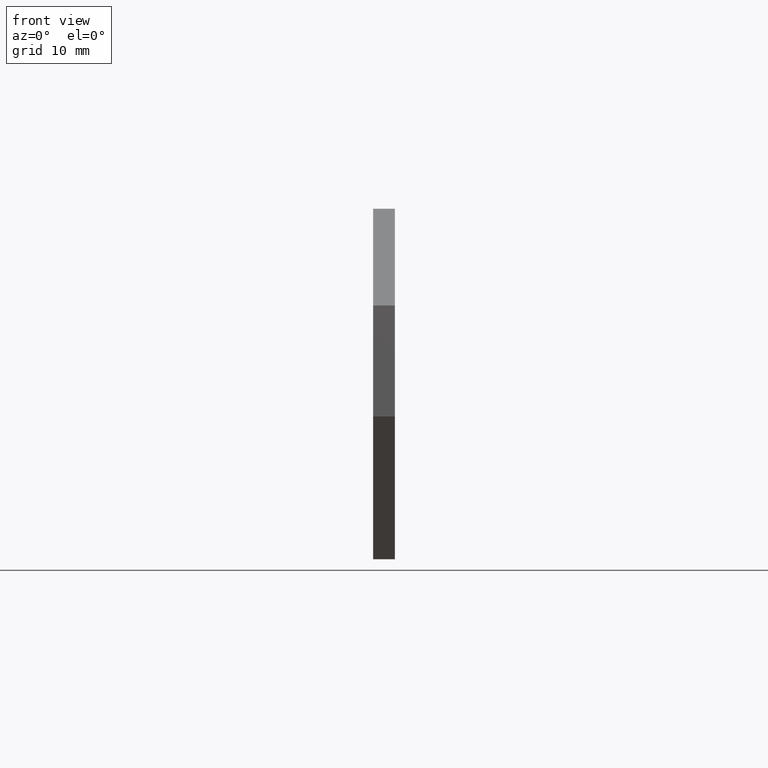
[diagram: clean part render]
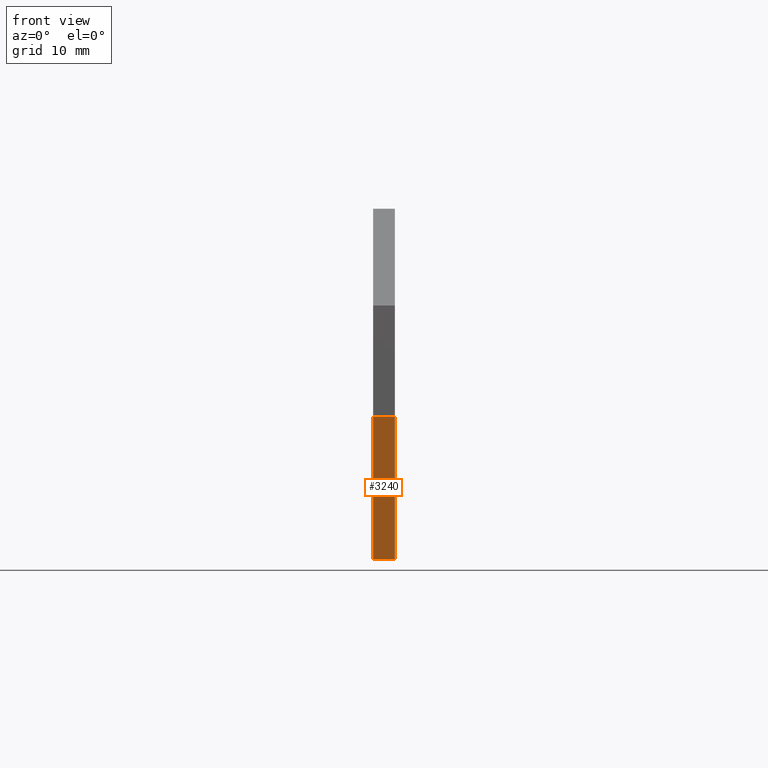
[diagram: same view with one face highlighted and labeled with its STEP entity id]
A machine part, front view. The second image highlights one B-rep face of the part: STEP entity #3240.
In plain terms, the highlighted planar face has unit normal (0, -0.8667, -0.4988).
Its self-contained STEP definition (entity closure, byte-faithful):
#520=CARTESIAN_POINT('',(42.2076425292826,-38.2000000000016,
45.3200000000002));
#530=VERTEX_POINT('',#520);
#560=CARTESIAN_POINT('',(20.2244857784315,0.,45.32));
#570=DIRECTION('',(-0.498780693240377,0.866728227330026,
-6.16173778666962E-15));
#580=VECTOR('',#570,1.);
#590=LINE('',#560,#580);
#600=CARTESIAN_POINT('',(33.9321672216736,-23.8197560553535,
45.3200000000001));
#610=VERTEX_POINT('',#600);
#620=EDGE_CURVE('',#530,#610,#590,.T.);
#910=CARTESIAN_POINT('',(33.9321672216736,-23.8197560553535,
43.1200000000001));
#920=VERTEX_POINT('',#910);
#950=CARTESIAN_POINT('',(20.2244857784315,0.,43.12));
#960=DIRECTION('',(-0.498780693240377,0.866728227330026,
-6.16173778666962E-15));
#970=VECTOR('',#960,1.);
#980=LINE('',#950,#970);
#990=CARTESIAN_POINT('',(42.2076425292826,-38.2000000000017,
43.1200000000002));
#1000=VERTEX_POINT('',#990);
#1010=EDGE_CURVE('',#1000,#920,#980,.T.);
#1710=CARTESIAN_POINT('',(42.2076425292825,-38.200000000002,0.));
#1720=DIRECTION('',(-1.9841476476192E-28,7.105427357601E-15,1.));
#1730=VECTOR('',#1720,1.);
#1740=LINE('',#1710,#1730);
#1750=EDGE_CURVE('',#1000,#530,#1740,.T.);
#2710=CARTESIAN_POINT('',(33.9321672216736,-23.8197560553538,0.));
#2720=DIRECTION('',(-1.99278912365413E-28,7.105427357601E-15,1.));
#2730=VECTOR('',#2720,1.);
#2740=LINE('',#2710,#2730);
#2750=EDGE_CURVE('',#920,#610,#2740,.T.);
#3130=CARTESIAN_POINT('',(34.1987107670136,-24.2829271798371,
45.3200000000001));
#3140=DIRECTION('',(-0.866728227330026,-0.498780693240377,
3.54404998319319E-15));
#3150=DIRECTION('',(0.498780693240377,-0.866728227330026,
6.15847445807589E-15));
#3160=AXIS2_PLACEMENT_3D('',#3130,#3140,#3150);
#3170=PLANE('',#3160);
#3180=ORIENTED_EDGE('',*,*,#1750,.T.);
#3190=ORIENTED_EDGE('',*,*,#1010,.F.);
#3200=ORIENTED_EDGE('',*,*,#2750,.F.);
#3210=ORIENTED_EDGE('',*,*,#620,.T.);
#3220=EDGE_LOOP('',(#3210,#3200,#3190,#3180));
#3230=FACE_OUTER_BOUND('',#3220,.T.);
#3240=ADVANCED_FACE('',(#3230),#3170,.T.);